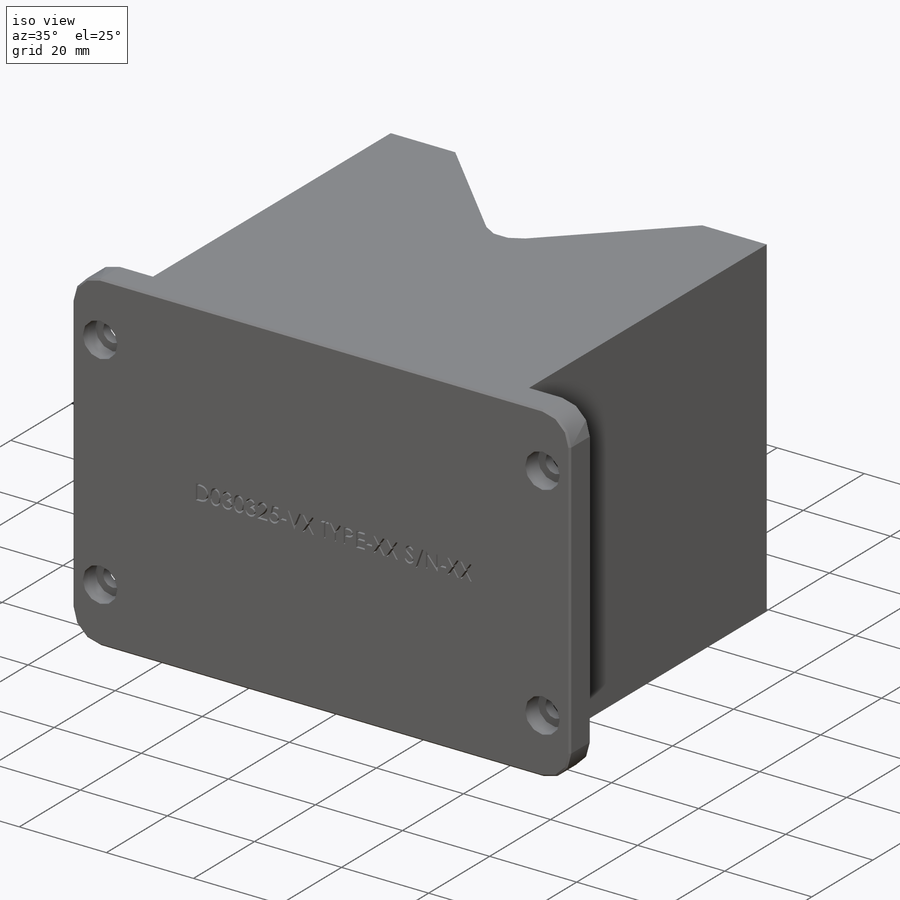
[diagram: iso view]
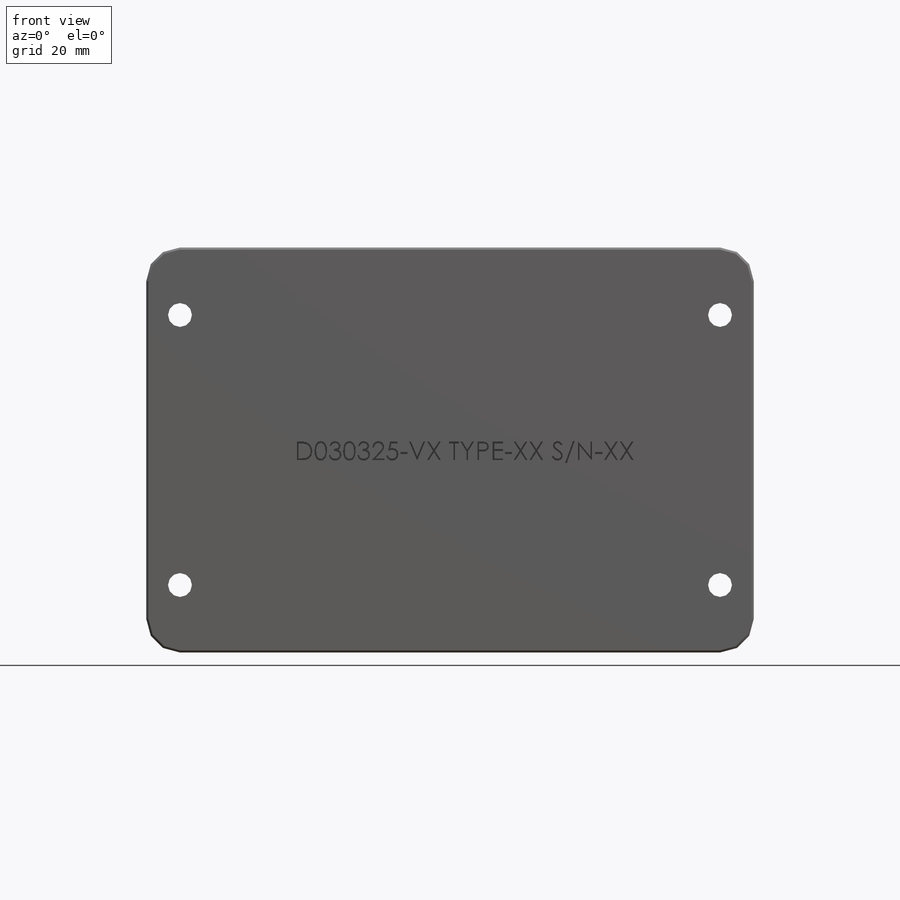
[diagram: front view]
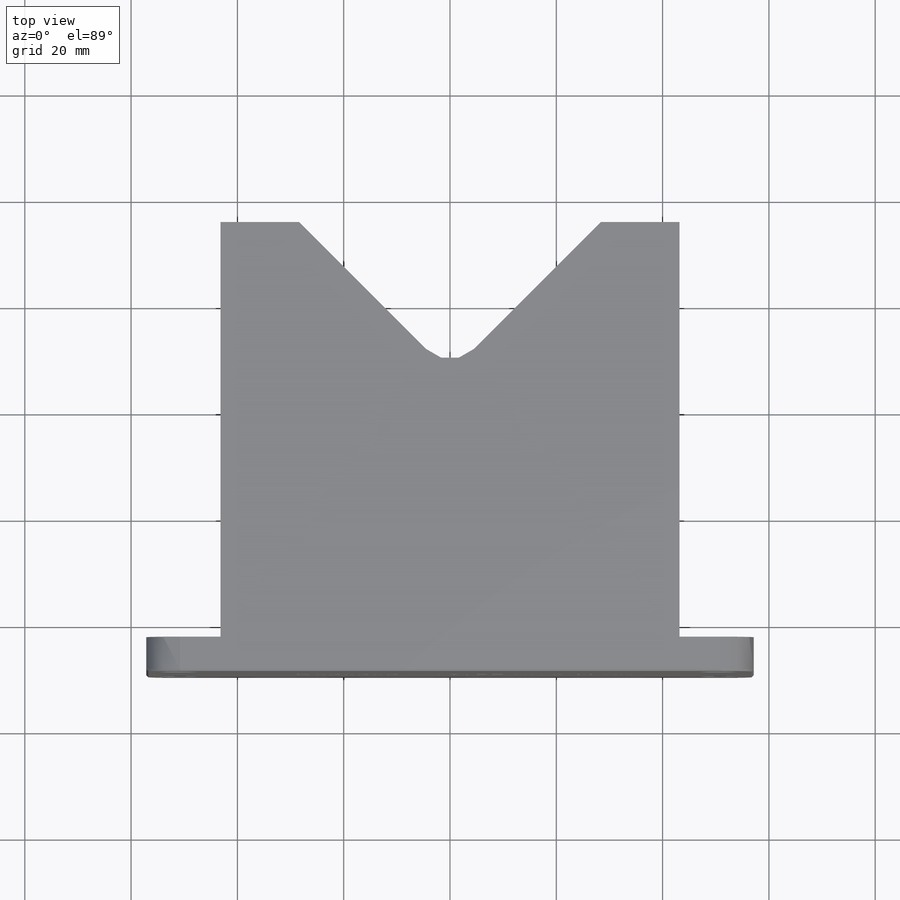
[diagram: top view]
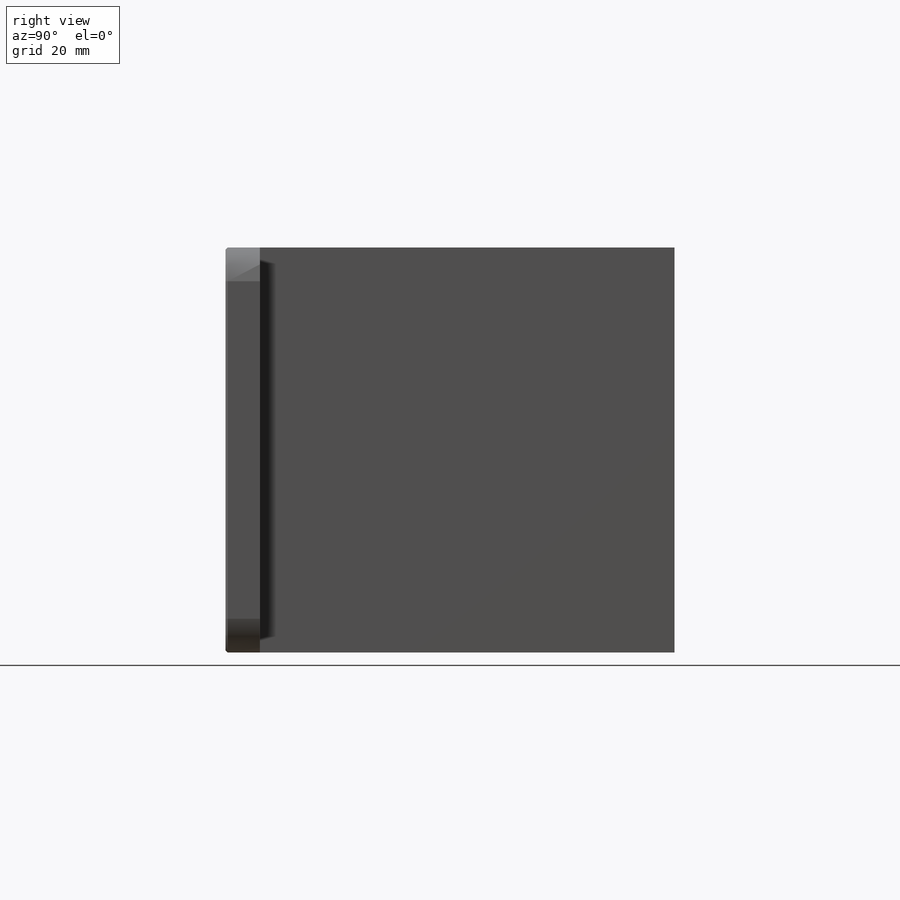
[diagram: right view]
SOLIDWORKS PART (.sldprt)
format: sldprt  version: not decoded by parser v0  size: 683,520 bytes
history: native  units: mm
features: sketch x10, cut_extrude x5, extrude x2, chamfer x2, material x1, hole x1, pattern_linear x1, fillet x1 + 1 further entry (+14 scaffold rows collapsed)
feature tree (38):
  scaffold x14  (default folders/planes/origin — collapsed)
  material  "6061-T6 Al"
  "Annotations"  RD1=43.170362mm RD2=43.189638mm RD3=14.812157mm RD4=14.812157mm
  sketch  "Sketch1"  dims[D1=76.2mm D2=114.3mm]
  extrude  "Extrude1"  Depth=9.525mm
  sketch  "Sketch2"  dims[D1=43.18mm D2=101.6mm]
  extrude  "Extrude7"  [1 undecoded]
  sketch  "Sketch3"  dims[D1=43.18mm]
  hole  "CBORE for #8 Socket Head Cap Screw1"  Diameter=4.4958mm Depth=25.4mm
  sketch  "Sketch5"  dims[D1=12.7mm D2=6.35mm]
  sketch  "Sketch4"  dims[hole-wizard template sketch: 28 standard entries collapsed; hole parameters kept: c8.Hole Dia.=4.4958mm c8.Hole Depth=25.4mm c8.C'Bore Dia.=7.9375mm c8.C'Bore Depth=4.1656mm c8.D5=~14.816244mm c8.Drill Angle=118.0deg]
  pattern_linear  "LPattern1"  Count1=2 Count2=2 Spacing1=50.8mm Spacing2=101.6mm
  fillet  "Fillet1"  Radius=6.35mm
  sketch  "Sketch6"  dims[D1=84.455mm]
  cut_extrude  "Cut-Extrude2"  [1 undecoded]
  sketch  "Sketch11"
  cut_extrude  "Cut-Extrude3"  Depth=2.54mm
  chamfer  "Chamfer1"  Distance=0.396875mm Angle=45deg
  chamfer  "Chamfer2"  Distance=0.396875mm Angle=45deg
  sketch  "Sketch12"  dims[c1.D5=6.35mm c1.D1=6.35mm c1.D2=~46.412842mm c2.D2=45.0deg c2.D4=~46.412842mm c3.D4=90.0deg c3.D2=~19.387587mm c3.D3=~36.476115mm c4.D3=45.0deg c4.D4=~23.875902mm c5.D4=90.0deg c5.D1=76.2mm c5.D3=12.7mm]
  cut_extrude  "Cut-Extrude4"  Depth=104.14mm
  sketch  "Sketch14"
  cut_extrude  "Cut-Extrude5"  Depth=3.0734mm
  sketch  "Sketch15"
  cut_extrude  "Cut-Extrude6"  Depth=3.0734mm
decode coverage: 17 of 22 modeling features carry decoded parameters; 1 rows unclassified (native names shown)
note: ~ marks probable driven/reference dimensions
note: 2 parameter values undecoded
note: suppression state not decoded; provenance and decode notes live in map.json
